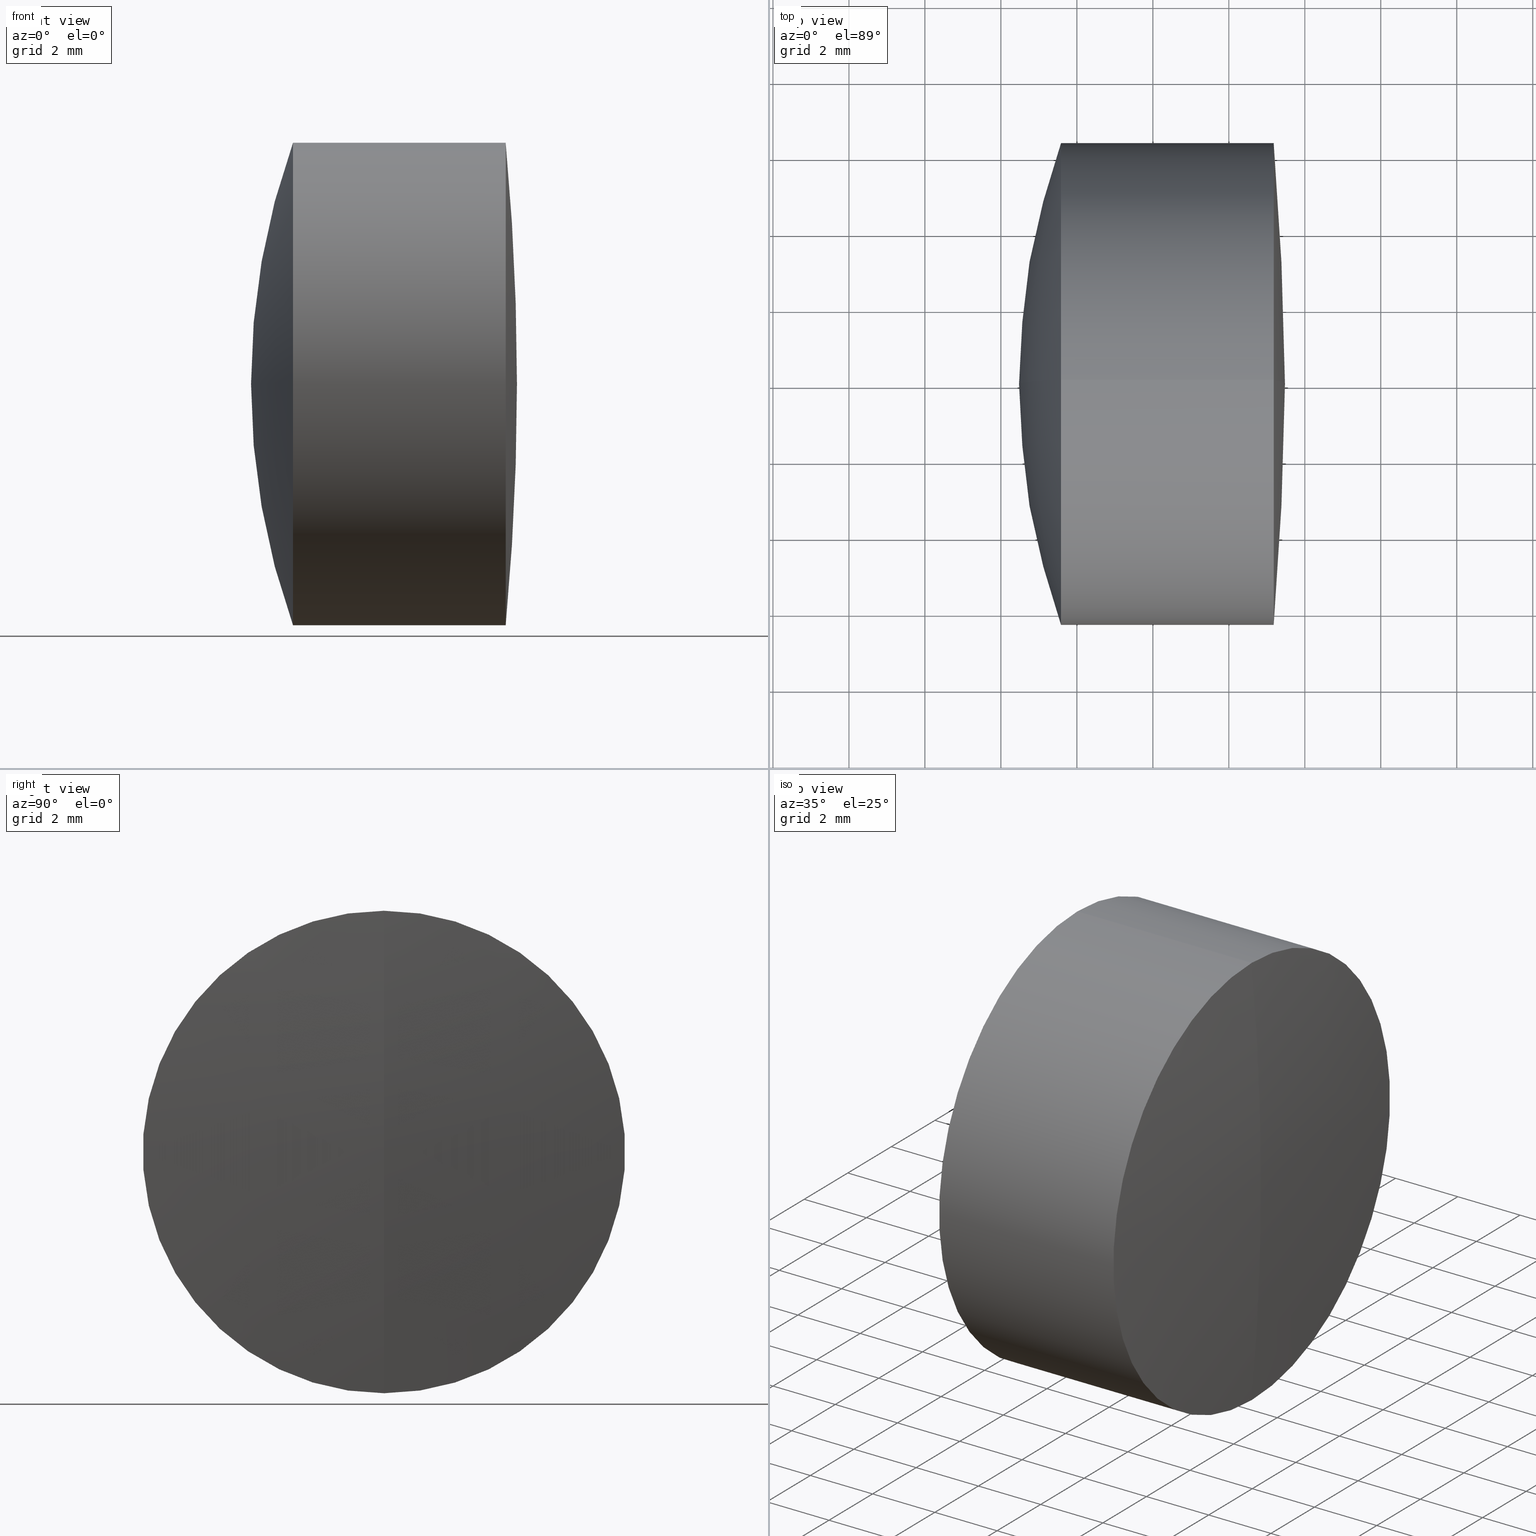
[diagram: canonical four-view strip — front | top / right | iso, engineering-drawing reading convention]
A machine part, canonical four-view strip (front | top / right | iso — engineering-drawing reading convention). The complete STEP part file that produces these views, byte-faithful:
ISO-10303-21;
HEADER;
FILE_DESCRIPTION (( 'STEP AP214' ),
    '1' );
FILE_NAME ('145025.STEP',
    '2019-05-10T08:15:44',
    ( 'user' ),
    ( '΢���й�' ),
    'SwSTEP 2.0',
    'SolidWorks 2016',
    '' );
FILE_SCHEMA (( 'AUTOMOTIVE_DESIGN' ));
ENDSEC;

DATA;
#1 = CARTESIAN_POINT ( 'NONE',  ( -0.5519199926577972300, 0.0000000000000000000, 0.0000000000000000000 ) ) ;
#2 = PRODUCT_RELATED_PRODUCT_CATEGORY ( 'part', '', ( #297 ) ) ;
#3 = EDGE_LOOP ( 'NONE', ( #242, #62, #171 ) ) ;
#4 = STYLED_ITEM ( 'NONE', ( #146 ), #5 ) ;
#5 = MANIFOLD_SOLID_BREP ( '��ת3', #329 ) ;
#6 = CARTESIAN_POINT ( 'NONE',  ( -2.417297294726642200, -7.776507174585684300E-016, 6.349999999999992500 ) ) ;
#7 = VERTEX_POINT ( 'NONE', #32 ) ;
#8 = CARTESIAN_POINT ( 'NONE',  ( 3.477829152970776800, 0.0000000000000000000, 4.169922351096738400E-015 ) ) ;
#9 = DIRECTION ( 'NONE',  ( 0.0000000000000000000, 1.000000000000000000, 0.0000000000000000000 ) ) ;
#10 = ORIENTED_EDGE ( 'NONE', *, *, #289, .F. ) ;
#11 = EDGE_CURVE ( 'NONE', #58, #106, #141, .T. ) ;
#12 = SURFACE_SIDE_STYLE ('',( #309 ) ) ;
#13 = DIRECTION ( 'NONE',  ( 0.0000000000000000000, 0.0000000000000000000, 1.000000000000000000 ) ) ;
#14 = CIRCLE ( 'NONE', #105, 10.60000000000000500 ) ;
#15 = ORIENTED_EDGE ( 'NONE', *, *, #333, .T. ) ;
#16 = UNCERTAINTY_MEASURE_WITH_UNIT (LENGTH_MEASURE( 1.000000000000000100E-005 ), #286, 'distance_accuracy_value', 'NONE');
#17 = CARTESIAN_POINT ( 'NONE',  ( -0.6346800517470375700, 7.776507174585696100E-016, -6.350000000000003200 ) ) ;
#18 = DIRECTION ( 'NONE',  ( 0.0000000000000000000, -1.000000000000000000, 0.0000000000000000000 ) ) ;
#19 = LINE ( 'NONE', #133, #129 ) ;
#20 = EDGE_CURVE ( 'NONE', #106, #189, #288, .T. ) ;
#21 = AXIS2_PLACEMENT_3D ( 'NONE', #248, #195, #343 ) ;
#22 = DIRECTION ( 'NONE',  ( 0.0000000000000000000, 0.0000000000000000000, 1.000000000000000000 ) ) ;
#23 = DIRECTION ( 'NONE',  ( -1.000000000000000000, -0.0000000000000000000, -0.0000000000000000000 ) ) ;
#24 = ORIENTED_EDGE ( 'NONE', *, *, #257, .T. ) ;
#25 = CARTESIAN_POINT ( 'NONE',  ( -0.6346800517470375700, 0.0000000000000000000, 0.0000000000000000000 ) ) ;
#26 = SPHERICAL_SURFACE ( 'NONE', #287, 10.60000000000000500 ) ;
#27 = SURFACE_STYLE_FILL_AREA ( #263 ) ;
#28 = DIRECTION ( 'NONE',  ( -1.000000000000000000, -0.0000000000000000000, -0.0000000000000000000 ) ) ;
#29 = ORIENTED_EDGE ( 'NONE', *, *, #235, .T. ) ;
#30 = PRODUCT_DEFINITION_SHAPE ( 'NONE', 'NONE',  #315 ) ;
#31 = CARTESIAN_POINT ( 'NONE',  ( 15.27782915297076400, 0.0000000000000000000, 4.145716693181975100E-017 ) ) ;
#32 = CARTESIAN_POINT ( 'NONE',  ( -0.6346800517470357900, 7.776507174585692200E-016, -6.349999999999999600 ) ) ;
#33 = FILL_AREA_STYLE_COLOUR ( '', #243 ) ;
#34 = AXIS2_PLACEMENT_3D ( 'NONE', #43, #227, #37 ) ;
#35 = CARTESIAN_POINT ( 'NONE',  ( 15.27782915297076400, 0.0000000000000000000, 4.145716693181975100E-017 ) ) ;
#36 = FACE_OUTER_BOUND ( 'NONE', #255, .T. ) ;
#37 = DIRECTION ( 'NONE',  ( 0.0000000000000000000, -1.224646799147353200E-016, 1.000000000000000000 ) ) ;
#38 = CARTESIAN_POINT ( 'NONE',  ( -64.62217084702922400, 0.0000000000000000000, 0.0000000000000000000 ) ) ;
#39 = AXIS2_PLACEMENT_3D ( 'NONE', #25, #183, #301 ) ;
#40 = DIRECTION ( 'NONE',  ( -1.000000000000000000, -0.0000000000000000000, -0.0000000000000000000 ) ) ;
#41 = CARTESIAN_POINT ( 'NONE',  ( 0.0000000000000000000, 0.0000000000000000000, 0.0000000000000000000 ) ) ;
#42 = ADVANCED_FACE ( 'NONE', ( #306 ), #214, .F. ) ;
#43 = CARTESIAN_POINT ( 'NONE',  ( -64.62217084702922400, 0.0000000000000000000, 0.0000000000000000000 ) ) ;
#44 = VERTEX_POINT ( 'NONE', #266 ) ;
#45 = DIRECTION ( 'NONE',  ( 0.0000000000000000000, 0.0000000000000000000, 1.000000000000000000 ) ) ;
#46 = DIRECTION ( 'NONE',  ( -1.000000000000000000, -0.0000000000000000000, -0.0000000000000000000 ) ) ;
#47 = EDGE_LOOP ( 'NONE', ( #281, #336, #77 ) ) ;
#48 = MECHANICAL_DESIGN_GEOMETRIC_PRESENTATION_REPRESENTATION (  '', ( #4 ), #274 ) ;
#49 = ADVANCED_FACE ( 'NONE', ( #122 ), #202, .T. ) ;
#50 = AXIS2_PLACEMENT_3D ( 'NONE', #244, #197, #13 ) ;
#51 = ORIENTED_EDGE ( 'NONE', *, *, #178, .T. ) ;
#52 = CIRCLE ( 'NONE', #168, 6.349999999999999600 ) ;
#53 = FACE_OUTER_BOUND ( 'NONE', #241, .T. ) ;
#54 = CARTESIAN_POINT ( 'NONE',  ( -9.702612178336682500, 0.0000000000000000000, 0.0000000000000000000 ) ) ;
#55 = VERTEX_POINT ( 'NONE', #84 ) ;
#56 = DIRECTION ( 'NONE',  ( 0.0000000000000000000, 0.0000000000000000000, 1.000000000000000000 ) ) ;
#57 = EDGE_LOOP ( 'NONE', ( #337, #15, #268 ) ) ;
#58 = VERTEX_POINT ( 'NONE', #237 ) ;
#59 = AXIS2_PLACEMENT_3D ( 'NONE', #330, #108, #134 ) ;
#60 = CIRCLE ( 'NONE', #90, 6.349999999999999600 ) ;
#61 = CARTESIAN_POINT ( 'NONE',  ( -9.122170847029236600, 0.0000000000000000000, 0.0000000000000000000 ) ) ;
#62 = ORIENTED_EDGE ( 'NONE', *, *, #308, .T. ) ;
#63 = VERTEX_POINT ( 'NONE', #8 ) ;
#64 = FILL_AREA_STYLE ('',( #33 ) ) ;
#65 = DIRECTION ( 'NONE',  ( 0.0000000000000000000, 0.0000000000000000000, 1.000000000000000000 ) ) ;
#66 = DIRECTION ( 'NONE',  ( -1.000000000000000000, -0.0000000000000000000, -0.0000000000000000000 ) ) ;
#67 = EDGE_LOOP ( 'NONE', ( #136, #231, #73 ) ) ;
#68 = EDGE_CURVE ( 'NONE', #7, #232, #19, .T. ) ;
#69 = DIRECTION ( 'NONE',  ( 0.0000000000000000000, 0.0000000000000000000, 1.000000000000000000 ) ) ;
#70 = EDGE_LOOP ( 'NONE', ( #209, #148, #156 ) ) ;
#71 = DIRECTION ( 'NONE',  ( 1.000000000000000000, 0.0000000000000000000, 0.0000000000000000000 ) ) ;
#72 = AXIS2_PLACEMENT_3D ( 'NONE', #321, #116, #152 ) ;
#73 = ORIENTED_EDGE ( 'NONE', *, *, #184, .F. ) ;
#74 = DIRECTION ( 'NONE',  ( -0.0000000000000000000, 1.000000000000000000, 1.224646799147353200E-016 ) ) ;
#75 = CARTESIAN_POINT ( 'NONE',  ( 3.181129220150388900, 0.0000000000000000000, 6.350000000000001400 ) ) ;
#76 = CARTESIAN_POINT ( 'NONE',  ( -0.5519199926577972300, 7.776507174585694100E-016, -6.350000000000001400 ) ) ;
#77 = ORIENTED_EDGE ( 'NONE', *, *, #126, .T. ) ;
#78 = ADVANCED_FACE ( 'NONE', ( #170 ), #26, .T. ) ;
#79 = AXIS2_PLACEMENT_3D ( 'NONE', #31, #88, #275 ) ;
#80 = DIRECTION ( 'NONE',  ( 0.0000000000000000000, 1.000000000000000000, 0.0000000000000000000 ) ) ;
#81 = ORIENTED_EDGE ( 'NONE', *, *, #20, .T. ) ;
#82 = CLOSED_SHELL ( 'NONE', ( #78, #325, #271, #149, #165, #49 ) ) ;
#83 = CARTESIAN_POINT ( 'NONE',  ( 1.477829152970767900, 0.0000000000000000000, 6.490628035480974900E-016 ) ) ;
#84 = CARTESIAN_POINT ( 'NONE',  ( -0.6346800517470375700, 0.0000000000000000000, 6.350000000000003200 ) ) ;
#85 = CARTESIAN_POINT ( 'NONE',  ( -64.62217084702922400, 0.0000000000000000000, 0.0000000000000000000 ) ) ;
#86 = ADVANCED_FACE ( 'NONE', ( #36 ), #299, .T. ) ;
#87 = SURFACE_SIDE_STYLE ('',( #117 ) ) ;
#88 = DIRECTION ( 'NONE',  ( 0.0000000000000000000, -1.000000000000000000, -1.224646799147353200E-016 ) ) ;
#89 = SHAPE_DEFINITION_REPRESENTATION ( #30, #153 ) ;
#90 = AXIS2_PLACEMENT_3D ( 'NONE', #295, #23, #45 ) ;
#91 = AXIS2_PLACEMENT_3D ( 'NONE', #35, #190, #167 ) ;
#92 = DIRECTION ( 'NONE',  ( 0.0000000000000000000, -1.000000000000000000, 0.0000000000000000000 ) ) ;
#93 = DIRECTION ( 'NONE',  ( 0.0000000000000000000, 0.0000000000000000000, 1.000000000000000000 ) ) ;
#94 = UNCERTAINTY_MEASURE_WITH_UNIT (LENGTH_MEASURE( 1.000000000000000100E-005 ), #139, 'distance_accuracy_value', 'NONE');
#95 = SPHERICAL_SURFACE ( 'NONE', #91, 18.80000000000000100 ) ;
#96 =( NAMED_UNIT ( * ) SI_UNIT ( $, .STERADIAN. ) SOLID_ANGLE_UNIT ( ) );
#97 = VECTOR ( 'NONE', #218, 1000.000000000000000 ) ;
#98 = ORIENTED_EDGE ( 'NONE', *, *, #184, .T. ) ;
#99 = AXIS2_PLACEMENT_3D ( 'NONE', #204, #103, #318 ) ;
#100 = ADVANCED_FACE ( 'NONE', ( #104 ), #130, .T. ) ;
#101 = SURFACE_SIDE_STYLE ('',( #27 ) ) ;
#102 = ORIENTED_EDGE ( 'NONE', *, *, #166, .F. ) ;
#103 = DIRECTION ( 'NONE',  ( -0.0000000000000000000, -1.000000000000000000, -0.0000000000000000000 ) ) ;
#104 = FACE_OUTER_BOUND ( 'NONE', #67, .T. ) ;
#105 = AXIS2_PLACEMENT_3D ( 'NONE', #177, #18, #247 ) ;
#106 = VERTEX_POINT ( 'NONE', #338 ) ;
#107 = PRODUCT_DEFINITION_CONTEXT ( 'detailed design', #113, 'design' ) ;
#108 = DIRECTION ( 'NONE',  ( -1.000000000000000000, -0.0000000000000000000, -0.0000000000000000000 ) ) ;
#109 = FACE_OUTER_BOUND ( 'NONE', #307, .T. ) ;
#110 = DIRECTION ( 'NONE',  ( -1.000000000000000000, -0.0000000000000000000, -0.0000000000000000000 ) ) ;
#111 = DIRECTION ( 'NONE',  ( -1.000000000000000000, -0.0000000000000000000, -0.0000000000000000000 ) ) ;
#112 = AXIS2_PLACEMENT_3D ( 'NONE', #128, #66, #65 ) ;
#113 = APPLICATION_CONTEXT ( 'automotive_design' ) ;
#114 = CIRCLE ( 'NONE', #79, 18.80000000000000100 ) ;
#115 = VECTOR ( 'NONE', #196, 1000.000000000000000 ) ;
#116 = DIRECTION ( 'NONE',  ( 0.0000000000000000000, 1.000000000000000000, -0.0000000000000000000 ) ) ;
#117 = SURFACE_STYLE_FILL_AREA ( #344 ) ;
#118 =( NAMED_UNIT ( * ) PLANE_ANGLE_UNIT ( ) SI_UNIT ( $, .RADIAN. ) );
#119 = EDGE_CURVE ( 'NONE', #106, #7, #60, .T. ) ;
#120 = AXIS2_PLACEMENT_3D ( 'NONE', #199, #40, #225 ) ;
#121 = ADVANCED_FACE ( 'NONE', ( #109 ), #320, .T. ) ;
#122 = FACE_OUTER_BOUND ( 'NONE', #70, .T. ) ;
#123 = APPLICATION_CONTEXT ( 'automotive_design' ) ;
#124 =( LENGTH_UNIT ( ) NAMED_UNIT ( * ) SI_UNIT ( .MILLI., .METRE. ) );
#125 = DIRECTION ( 'NONE',  ( -0.0000000000000000000, 1.000000000000000000, 1.224646799147353200E-016 ) ) ;
#126 = EDGE_CURVE ( 'NONE', #316, #55, #176, .T. ) ;
#127 = AXIS2_PLACEMENT_3D ( 'NONE', #160, #173, #273 ) ;
#128 = CARTESIAN_POINT ( 'NONE',  ( 3.181129220150388900, 0.0000000000000000000, 0.0000000000000000000 ) ) ;
#129 = VECTOR ( 'NONE', #304, 1000.000000000000000 ) ;
#130 = SPHERICAL_SURFACE ( 'NONE', #317, 68.10000000000000900 ) ;
#131 = FILL_AREA_STYLE_COLOUR ( '', #305 ) ;
#132 = ORIENTED_EDGE ( 'NONE', *, *, #140, .F. ) ;
#133 = CARTESIAN_POINT ( 'NONE',  ( -9.702612178336682500, 7.776507174585692200E-016, -6.349999999999999600 ) ) ;
#134 = DIRECTION ( 'NONE',  ( 0.0000000000000000000, 0.0000000000000000000, 1.000000000000000000 ) ) ;
#135 = CIRCLE ( 'NONE', #50, 6.349999999999999600 ) ;
#136 = ORIENTED_EDGE ( 'NONE', *, *, #192, .F. ) ;
#137 = UNCERTAINTY_MEASURE_WITH_UNIT (LENGTH_MEASURE( 1.000000000000000100E-005 ), #124, 'distance_accuracy_value', 'NONE');
#138 = CARTESIAN_POINT ( 'NONE',  ( -9.122170847029236600, 0.0000000000000000000, 0.0000000000000000000 ) ) ;
#139 =( LENGTH_UNIT ( ) NAMED_UNIT ( * ) SI_UNIT ( .MILLI., .METRE. ) );
#140 = EDGE_CURVE ( 'NONE', #340, #316, #346, .T. ) ;
#141 = CIRCLE ( 'NONE', #323, 10.60000000000000500 ) ;
#142 =( NAMED_UNIT ( * ) SI_UNIT ( $, .STERADIAN. ) SOLID_ANGLE_UNIT ( ) );
#143 =( GEOMETRIC_REPRESENTATION_CONTEXT ( 3 ) GLOBAL_UNCERTAINTY_ASSIGNED_CONTEXT ( ( #158 ) ) GLOBAL_UNIT_ASSIGNED_CONTEXT ( ( #291, #179, #142 ) ) REPRESENTATION_CONTEXT ( 'NONE', 'WORKASPACE' ) );
#144 = CARTESIAN_POINT ( 'NONE',  ( -0.5519199926577972300, 0.0000000000000000000, 6.350000000000001400 ) ) ;
#145 =( NAMED_UNIT ( * ) SI_UNIT ( $, .STERADIAN. ) SOLID_ANGLE_UNIT ( ) );
#146 = PRESENTATION_STYLE_ASSIGNMENT (( #285 ) ) ;
#147 =( NAMED_UNIT ( * ) SI_UNIT ( $, .STERADIAN. ) SOLID_ANGLE_UNIT ( ) );
#148 = ORIENTED_EDGE ( 'NONE', *, *, #11, .T. ) ;
#149 = ADVANCED_FACE ( 'NONE', ( #238 ), #193, .T. ) ;
#150 = ORIENTED_EDGE ( 'NONE', *, *, #312, .T. ) ;
#151 = EDGE_CURVE ( 'NONE', #189, #44, #114, .T. ) ;
#152 = DIRECTION ( 'NONE',  ( 0.0000000000000000000, 0.0000000000000000000, 1.000000000000000000 ) ) ;
#153 = ADVANCED_BREP_SHAPE_REPRESENTATION ( '145025', ( #234, #5, #293 ), #143 ) ;
#154 = AXIS2_PLACEMENT_3D ( 'NONE', #54, #110, #284 ) ;
#155 = CARTESIAN_POINT ( 'NONE',  ( 3.181129220150388900, 7.776507174585694100E-016, -6.350000000000001400 ) ) ;
#156 = ORIENTED_EDGE ( 'NONE', *, *, #267, .F. ) ;
#157 =( NAMED_UNIT ( * ) PLANE_ANGLE_UNIT ( ) SI_UNIT ( $, .RADIAN. ) );
#158 = UNCERTAINTY_MEASURE_WITH_UNIT (LENGTH_MEASURE( 1.000000000000000100E-005 ), #291, 'distance_accuracy_value', 'NONE');
#159 = DIRECTION ( 'NONE',  ( -1.000000000000000000, -0.0000000000000000000, -0.0000000000000000000 ) ) ;
#160 = CARTESIAN_POINT ( 'NONE',  ( -0.6346800517470375700, 0.0000000000000000000, 0.0000000000000000000 ) ) ;
#161 = FACE_OUTER_BOUND ( 'NONE', #203, .T. ) ;
#162 = AXIS2_PLACEMENT_3D ( 'NONE', #345, #74, #260 ) ;
#163 = CARTESIAN_POINT ( 'NONE',  ( -9.122170847029236600, 0.0000000000000000000, 0.0000000000000000000 ) ) ;
#164 = FACE_OUTER_BOUND ( 'NONE', #216, .T. ) ;
#165 = ADVANCED_FACE ( 'NONE', ( #164 ), #300, .T. ) ;
#166 = EDGE_CURVE ( 'NONE', #55, #316, #327, .T. ) ;
#167 = DIRECTION ( 'NONE',  ( 0.0000000000000000000, 0.0000000000000000000, -1.000000000000000000 ) ) ;
#168 = AXIS2_PLACEMENT_3D ( 'NONE', #264, #28, #174 ) ;
#169 = DIRECTION ( 'NONE',  ( 0.0000000000000000000, 1.000000000000000000, 0.0000000000000000000 ) ) ;
#170 = FACE_OUTER_BOUND ( 'NONE', #57, .T. ) ;
#171 = ORIENTED_EDGE ( 'NONE', *, *, #166, .T. ) ;
#172 = ADVANCED_FACE ( 'NONE', ( #161 ), #313, .T. ) ;
#173 = DIRECTION ( 'NONE',  ( -1.000000000000000000, -0.0000000000000000000, -0.0000000000000000000 ) ) ;
#174 = DIRECTION ( 'NONE',  ( 0.0000000000000000000, 0.0000000000000000000, 1.000000000000000000 ) ) ;
#175 = PRESENTATION_STYLE_ASSIGNMENT (( #207 ) ) ;
#176 = CIRCLE ( 'NONE', #39, 6.350000000000002300 ) ;
#177 = CARTESIAN_POINT ( 'NONE',  ( -9.122170847029236600, 0.0000000000000000000, 0.0000000000000000000 ) ) ;
#178 = EDGE_CURVE ( 'NONE', #189, #232, #52, .T. ) ;
#179 =( NAMED_UNIT ( * ) PLANE_ANGLE_UNIT ( ) SI_UNIT ( $, .RADIAN. ) );
#180 = DIRECTION ( 'NONE',  ( 0.0000000000000000000, 0.0000000000000000000, -1.000000000000000000 ) ) ;
#181 = AXIS2_PLACEMENT_3D ( 'NONE', #341, #159, #69 ) ;
#182 = VERTEX_POINT ( 'NONE', #83 ) ;
#183 = DIRECTION ( 'NONE',  ( -1.000000000000000000, -0.0000000000000000000, -0.0000000000000000000 ) ) ;
#184 = EDGE_CURVE ( 'NONE', #322, #340, #217, .T. ) ;
#185 = AXIS2_PLACEMENT_3D ( 'NONE', #1, #111, #22 ) ;
#186 = DIRECTION ( 'NONE',  ( 0.0000000000000000000, 1.000000000000000000, 0.0000000000000000000 ) ) ;
#187 = SPHERICAL_SURFACE ( 'NONE', #236, 10.60000000000000500 ) ;
#188 = CARTESIAN_POINT ( 'NONE',  ( -64.62217084702922400, 0.0000000000000000000, 0.0000000000000000000 ) ) ;
#189 = VERTEX_POINT ( 'NONE', #6 ) ;
#190 = DIRECTION ( 'NONE',  ( -0.0000000000000000000, -1.000000000000000000, -0.0000000000000000000 ) ) ;
#191 = AXIS2_PLACEMENT_3D ( 'NONE', #303, #80, #212 ) ;
#192 = EDGE_CURVE ( 'NONE', #63, #322, #252, .T. ) ;
#193 = SPHERICAL_SURFACE ( 'NONE', #99, 18.80000000000000100 ) ;
#194 = CIRCLE ( 'NONE', #162, 10.60000000000000500 ) ;
#195 = DIRECTION ( 'NONE',  ( -1.000000000000000000, -0.0000000000000000000, -0.0000000000000000000 ) ) ;
#196 = DIRECTION ( 'NONE',  ( -1.000000000000000000, -0.0000000000000000000, -0.0000000000000000000 ) ) ;
#197 = DIRECTION ( 'NONE',  ( -1.000000000000000000, -0.0000000000000000000, -0.0000000000000000000 ) ) ;
#198 = FACE_OUTER_BOUND ( 'NONE', #290, .T. ) ;
#199 = CARTESIAN_POINT ( 'NONE',  ( -2.417297294726639600, 0.0000000000000000000, 0.0000000000000000000 ) ) ;
#200 = AXIS2_PLACEMENT_3D ( 'NONE', #38, #223, #310 ) ;
#201 = APPLICATION_PROTOCOL_DEFINITION ( 'draft international standard', 'automotive_design', 1998, #123 ) ;
#202 = SPHERICAL_SURFACE ( 'NONE', #191, 10.60000000000000500 ) ;
#203 = EDGE_LOOP ( 'NONE', ( #132, #29, #24, #314 ) ) ;
#204 = CARTESIAN_POINT ( 'NONE',  ( 15.27782915297076400, 0.0000000000000000000, 4.145716693181975100E-017 ) ) ;
#205 = ORIENTED_EDGE ( 'NONE', *, *, #289, .T. ) ;
#206 = ADVANCED_FACE ( 'NONE', ( #272 ), #187, .F. ) ;
#207 = SURFACE_STYLE_USAGE ( .BOTH. , #87 ) ;
#208 = EDGE_CURVE ( 'NONE', #182, #316, #239, .T. ) ;
#209 = ORIENTED_EDGE ( 'NONE', *, *, #333, .F. ) ;
#210 = ORIENTED_EDGE ( 'NONE', *, *, #257, .F. ) ;
#211 = STYLED_ITEM ( 'NONE', ( #224 ), #153 ) ;
#212 = DIRECTION ( 'NONE',  ( 0.0000000000000000000, 0.0000000000000000000, 1.000000000000000000 ) ) ;
#213 = DIRECTION ( 'NONE',  ( 0.0000000000000000000, 1.000000000000000000, 0.0000000000000000000 ) ) ;
#214 = SPHERICAL_SURFACE ( 'NONE', #311, 10.60000000000000500 ) ;
#215 = ORIENTED_EDGE ( 'NONE', *, *, #140, .T. ) ;
#216 = EDGE_LOOP ( 'NONE', ( #332, #220, #81, #279 ) ) ;
#217 = CIRCLE ( 'NONE', #112, 6.350000000000001400 ) ;
#218 = DIRECTION ( 'NONE',  ( -1.000000000000000000, -0.0000000000000000000, -0.0000000000000000000 ) ) ;
#219 = AXIS2_PLACEMENT_3D ( 'NONE', #233, #125, #278 ) ;
#220 = ORIENTED_EDGE ( 'NONE', *, *, #267, .T. ) ;
#221 = ORIENTED_EDGE ( 'NONE', *, *, #119, .T. ) ;
#222 = CARTESIAN_POINT ( 'NONE',  ( -2.417297294726642200, 0.0000000000000000000, -6.349999999999992500 ) ) ;
#223 = DIRECTION ( 'NONE',  ( 0.0000000000000000000, -1.000000000000000000, 0.0000000000000000000 ) ) ;
#224 = PRESENTATION_STYLE_ASSIGNMENT (( #326 ) ) ;
#225 = DIRECTION ( 'NONE',  ( 0.0000000000000000000, 0.0000000000000000000, 1.000000000000000000 ) ) ;
#226 = DIRECTION ( 'NONE',  ( 0.0000000000000000000, 0.0000000000000000000, 1.000000000000000000 ) ) ;
#227 = DIRECTION ( 'NONE',  ( -0.0000000000000000000, 1.000000000000000000, 1.224646799147353200E-016 ) ) ;
#228 = PRESENTATION_LAYER_ASSIGNMENT (  '', '', ( #211 ) ) ;
#229 = PRODUCT_CONTEXT ( 'NONE', #123, 'mechanical' ) ;
#230 = ORIENTED_EDGE ( 'NONE', *, *, #192, .T. ) ;
#231 = ORIENTED_EDGE ( 'NONE', *, *, #249, .T. ) ;
#232 = VERTEX_POINT ( 'NONE', #222 ) ;
#233 = CARTESIAN_POINT ( 'NONE',  ( -9.122170847029236600, 0.0000000000000000000, 0.0000000000000000000 ) ) ;
#234 = MANIFOLD_SOLID_BREP ( '��ת1', #82 ) ;
#235 = EDGE_CURVE ( 'NONE', #340, #322, #261, .T. ) ;
#236 = AXIS2_PLACEMENT_3D ( 'NONE', #138, #169, #282 ) ;
#237 = CARTESIAN_POINT ( 'NONE',  ( 1.477829152970767900, 0.0000000000000000000, 6.490628035480974900E-016 ) ) ;
#238 = FACE_OUTER_BOUND ( 'NONE', #246, .T. ) ;
#239 = CIRCLE ( 'NONE', #219, 10.60000000000000500 ) ;
#240 = DIRECTION ( 'NONE',  ( 0.0000000000000000000, 0.0000000000000000000, 1.000000000000000000 ) ) ;
#241 = EDGE_LOOP ( 'NONE', ( #221, #319, #265, #262 ) ) ;
#242 = ORIENTED_EDGE ( 'NONE', *, *, #208, .F. ) ;
#243 = COLOUR_RGB ( '',1.000000000000000000, 1.000000000000000000, 1.000000000000000000 ) ;
#244 = CARTESIAN_POINT ( 'NONE',  ( -0.6346800517470357900, 0.0000000000000000000, 0.0000000000000000000 ) ) ;
#245 = LINE ( 'NONE', #144, #115 ) ;
#246 = EDGE_LOOP ( 'NONE', ( #254, #51, #205 ) ) ;
#247 = DIRECTION ( 'NONE',  ( 0.0000000000000000000, 0.0000000000000000000, -1.000000000000000000 ) ) ;
#248 = CARTESIAN_POINT ( 'NONE',  ( 3.181129220150388900, 0.0000000000000000000, 0.0000000000000000000 ) ) ;
#249 = EDGE_CURVE ( 'NONE', #63, #340, #331, .T. ) ;
#250 = DIRECTION ( 'NONE',  ( 0.0000000000000000000, 1.000000000000000000, 0.0000000000000000000 ) ) ;
#251 = MECHANICAL_DESIGN_GEOMETRIC_PRESENTATION_REPRESENTATION (  '', ( #211 ), #269 ) ;
#252 = CIRCLE ( 'NONE', #200, 68.10000000000000900 ) ;
#253 = CIRCLE ( 'NONE', #120, 6.349999999999999600 ) ;
#254 = ORIENTED_EDGE ( 'NONE', *, *, #151, .F. ) ;
#255 = EDGE_LOOP ( 'NONE', ( #334, #230, #328 ) ) ;
#256 = COLOUR_RGB ( '',1.000000000000000000, 1.000000000000000000, 1.000000000000000000 ) ;
#257 = EDGE_CURVE ( 'NONE', #322, #55, #245, .T. ) ;
#258 = STYLED_ITEM ( 'NONE', ( #175 ), #234 ) ;
#259 =( NAMED_UNIT ( * ) PLANE_ANGLE_UNIT ( ) SI_UNIT ( $, .RADIAN. ) );
#260 = DIRECTION ( 'NONE',  ( 0.0000000000000000000, -1.224646799147353200E-016, 1.000000000000000000 ) ) ;
#261 = CIRCLE ( 'NONE', #21, 6.350000000000001400 ) ;
#262 = ORIENTED_EDGE ( 'NONE', *, *, #20, .F. ) ;
#263 = FILL_AREA_STYLE ('',( #324 ) ) ;
#264 = CARTESIAN_POINT ( 'NONE',  ( -2.417297294726639600, 0.0000000000000000000, 0.0000000000000000000 ) ) ;
#265 = ORIENTED_EDGE ( 'NONE', *, *, #178, .F. ) ;
#266 = CARTESIAN_POINT ( 'NONE',  ( -3.522170847029236600, 0.0000000000000000000, -1.109710824266692100E-015 ) ) ;
#267 = EDGE_CURVE ( 'NONE', #7, #106, #135, .T. ) ;
#268 = ORIENTED_EDGE ( 'NONE', *, *, #119, .F. ) ;
#269 =( GEOMETRIC_REPRESENTATION_CONTEXT ( 3 ) GLOBAL_UNCERTAINTY_ASSIGNED_CONTEXT ( ( #137 ) ) GLOBAL_UNIT_ASSIGNED_CONTEXT ( ( #124, #259, #145 ) ) REPRESENTATION_CONTEXT ( 'NONE', 'WORKASPACE' ) );
#270 = DIRECTION ( 'NONE',  ( 0.0000000000000000000, 0.0000000000000000000, 1.000000000000000000 ) ) ;
#271 = ADVANCED_FACE ( 'NONE', ( #198 ), #95, .T. ) ;
#272 = FACE_OUTER_BOUND ( 'NONE', #3, .T. ) ;
#273 = DIRECTION ( 'NONE',  ( 0.0000000000000000000, 0.0000000000000000000, 1.000000000000000000 ) ) ;
#274 =( GEOMETRIC_REPRESENTATION_CONTEXT ( 3 ) GLOBAL_UNCERTAINTY_ASSIGNED_CONTEXT ( ( #94 ) ) GLOBAL_UNIT_ASSIGNED_CONTEXT ( ( #139, #157, #147 ) ) REPRESENTATION_CONTEXT ( 'NONE', 'WORKASPACE' ) );
#275 = DIRECTION ( 'NONE',  ( 0.0000000000000000000, 1.224646799147353000E-016, -1.000000000000000000 ) ) ;
#276 = VECTOR ( 'NONE', #46, 1000.000000000000000 ) ;
#277 =( GEOMETRIC_REPRESENTATION_CONTEXT ( 3 ) GLOBAL_UNCERTAINTY_ASSIGNED_CONTEXT ( ( #16 ) ) GLOBAL_UNIT_ASSIGNED_CONTEXT ( ( #286, #118, #96 ) ) REPRESENTATION_CONTEXT ( 'NONE', 'WORKASPACE' ) );
#278 = DIRECTION ( 'NONE',  ( 0.0000000000000000000, -1.224646799147353200E-016, 1.000000000000000000 ) ) ;
#279 = ORIENTED_EDGE ( 'NONE', *, *, #312, .F. ) ;
#280 = PRESENTATION_LAYER_ASSIGNMENT (  '', '', ( #258 ) ) ;
#281 = ORIENTED_EDGE ( 'NONE', *, *, #308, .F. ) ;
#282 = DIRECTION ( 'NONE',  ( 0.0000000000000000000, 0.0000000000000000000, 1.000000000000000000 ) ) ;
#283 = APPLICATION_PROTOCOL_DEFINITION ( 'draft international standard', 'automotive_design', 1998, #113 ) ;
#284 = DIRECTION ( 'NONE',  ( 0.0000000000000000000, 0.0000000000000000000, 1.000000000000000000 ) ) ;
#285 = SURFACE_STYLE_USAGE ( .BOTH. , #12 ) ;
#286 =( LENGTH_UNIT ( ) NAMED_UNIT ( * ) SI_UNIT ( .MILLI., .METRE. ) );
#287 = AXIS2_PLACEMENT_3D ( 'NONE', #163, #186, #240 ) ;
#288 = LINE ( 'NONE', #292, #97 ) ;
#289 = EDGE_CURVE ( 'NONE', #232, #44, #335, .T. ) ;
#290 = EDGE_LOOP ( 'NONE', ( #150, #294, #10 ) ) ;
#291 =( LENGTH_UNIT ( ) NAMED_UNIT ( * ) SI_UNIT ( .MILLI., .METRE. ) );
#292 = CARTESIAN_POINT ( 'NONE',  ( -9.702612178336682500, 0.0000000000000000000, 6.349999999999999600 ) ) ;
#293 = AXIS2_PLACEMENT_3D ( 'NONE', #41, #226, #71 ) ;
#294 = ORIENTED_EDGE ( 'NONE', *, *, #151, .T. ) ;
#295 = CARTESIAN_POINT ( 'NONE',  ( -0.6346800517470357900, 0.0000000000000000000, 0.0000000000000000000 ) ) ;
#296 = AXIS2_PLACEMENT_3D ( 'NONE', #188, #9, #270 ) ;
#297 = PRODUCT ( '145025', '145025', '', ( #229 ) ) ;
#298 = PRESENTATION_LAYER_ASSIGNMENT (  '', '', ( #4 ) ) ;
#299 = SPHERICAL_SURFACE ( 'NONE', #296, 68.10000000000000900 ) ;
#300 = CYLINDRICAL_SURFACE ( 'NONE', #154, 6.349999999999999600 ) ;
#301 = DIRECTION ( 'NONE',  ( 0.0000000000000000000, 0.0000000000000000000, 1.000000000000000000 ) ) ;
#302 = MECHANICAL_DESIGN_GEOMETRIC_PRESENTATION_REPRESENTATION (  '', ( #258 ), #277 ) ;
#303 = CARTESIAN_POINT ( 'NONE',  ( -9.122170847029236600, 0.0000000000000000000, 0.0000000000000000000 ) ) ;
#304 = DIRECTION ( 'NONE',  ( -1.000000000000000000, -0.0000000000000000000, -0.0000000000000000000 ) ) ;
#305 = COLOUR_RGB ( '',1.000000000000000000, 1.000000000000000000, 1.000000000000000000 ) ;
#306 = FACE_OUTER_BOUND ( 'NONE', #47, .T. ) ;
#307 = EDGE_LOOP ( 'NONE', ( #98, #215, #102, #210 ) ) ;
#308 = EDGE_CURVE ( 'NONE', #182, #55, #14, .T. ) ;
#309 = SURFACE_STYLE_FILL_AREA ( #64 ) ;
#310 = DIRECTION ( 'NONE',  ( 0.0000000000000000000, 0.0000000000000000000, -1.000000000000000000 ) ) ;
#311 = AXIS2_PLACEMENT_3D ( 'NONE', #347, #250, #93 ) ;
#312 = EDGE_CURVE ( 'NONE', #232, #189, #253, .T. ) ;
#313 = CYLINDRICAL_SURFACE ( 'NONE', #185, 6.350000000000001400 ) ;
#314 = ORIENTED_EDGE ( 'NONE', *, *, #126, .F. ) ;
#315 = PRODUCT_DEFINITION ( 'δ֪', '', #339, #107 ) ;
#316 = VERTEX_POINT ( 'NONE', #17 ) ;
#317 = AXIS2_PLACEMENT_3D ( 'NONE', #85, #213, #56 ) ;
#318 = DIRECTION ( 'NONE',  ( 0.0000000000000000000, 0.0000000000000000000, -1.000000000000000000 ) ) ;
#319 = ORIENTED_EDGE ( 'NONE', *, *, #68, .T. ) ;
#320 = CYLINDRICAL_SURFACE ( 'NONE', #59, 6.350000000000001400 ) ;
#321 = CARTESIAN_POINT ( 'NONE',  ( 15.27782915297076400, 0.0000000000000000000, 4.145716693181975100E-017 ) ) ;
#322 = VERTEX_POINT ( 'NONE', #75 ) ;
#323 = AXIS2_PLACEMENT_3D ( 'NONE', #61, #92, #180 ) ;
#324 = FILL_AREA_STYLE_COLOUR ( '', #256 ) ;
#325 = ADVANCED_FACE ( 'NONE', ( #53 ), #342, .T. ) ;
#326 = SURFACE_STYLE_USAGE ( .BOTH. , #101 ) ;
#327 = CIRCLE ( 'NONE', #127, 6.350000000000002300 ) ;
#328 = ORIENTED_EDGE ( 'NONE', *, *, #235, .F. ) ;
#329 = CLOSED_SHELL ( 'NONE', ( #100, #121, #42, #206, #172, #86 ) ) ;
#330 = CARTESIAN_POINT ( 'NONE',  ( -0.5519199926577972300, 0.0000000000000000000, 0.0000000000000000000 ) ) ;
#331 = CIRCLE ( 'NONE', #34, 68.10000000000000900 ) ;
#332 = ORIENTED_EDGE ( 'NONE', *, *, #68, .F. ) ;
#333 = EDGE_CURVE ( 'NONE', #58, #7, #194, .T. ) ;
#334 = ORIENTED_EDGE ( 'NONE', *, *, #249, .F. ) ;
#335 = CIRCLE ( 'NONE', #72, 18.80000000000000100 ) ;
#336 = ORIENTED_EDGE ( 'NONE', *, *, #208, .T. ) ;
#337 = ORIENTED_EDGE ( 'NONE', *, *, #11, .F. ) ;
#338 = CARTESIAN_POINT ( 'NONE',  ( -0.6346800517470357900, 0.0000000000000000000, 6.349999999999999600 ) ) ;
#339 = PRODUCT_DEFINITION_FORMATION_WITH_SPECIFIED_SOURCE ( '�κ�', '', #297, .NOT_KNOWN. ) ;
#340 = VERTEX_POINT ( 'NONE', #155 ) ;
#341 = CARTESIAN_POINT ( 'NONE',  ( -9.702612178336682500, 0.0000000000000000000, 0.0000000000000000000 ) ) ;
#342 = CYLINDRICAL_SURFACE ( 'NONE', #181, 6.349999999999999600 ) ;
#343 = DIRECTION ( 'NONE',  ( 0.0000000000000000000, 0.0000000000000000000, 1.000000000000000000 ) ) ;
#344 = FILL_AREA_STYLE ('',( #131 ) ) ;
#345 = CARTESIAN_POINT ( 'NONE',  ( -9.122170847029236600, 0.0000000000000000000, 0.0000000000000000000 ) ) ;
#346 = LINE ( 'NONE', #76, #276 ) ;
#347 = CARTESIAN_POINT ( 'NONE',  ( -9.122170847029236600, 0.0000000000000000000, 0.0000000000000000000 ) ) ;
ENDSEC;
END-ISO-10303-21;
